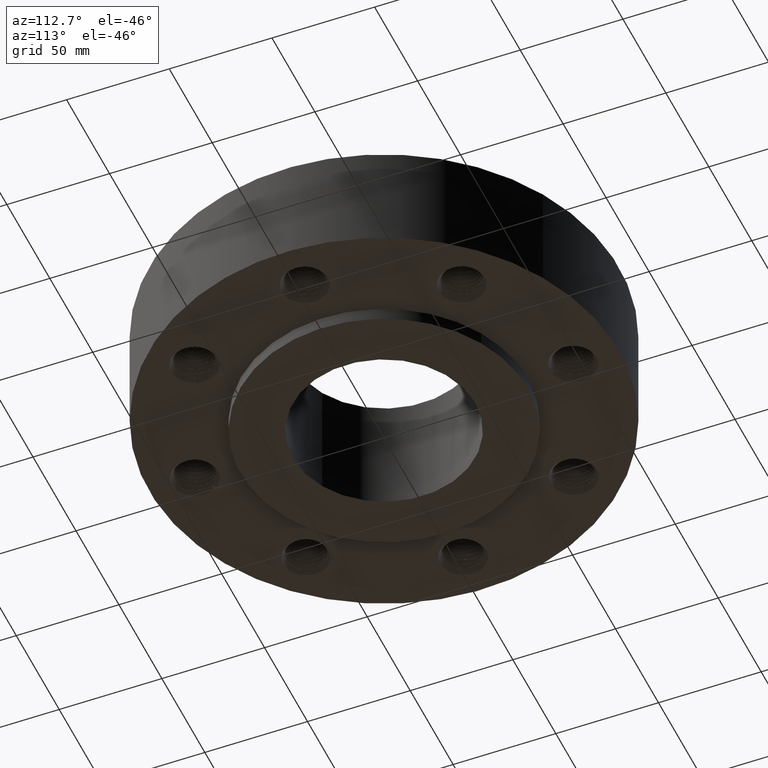
[diagram: clean part render]
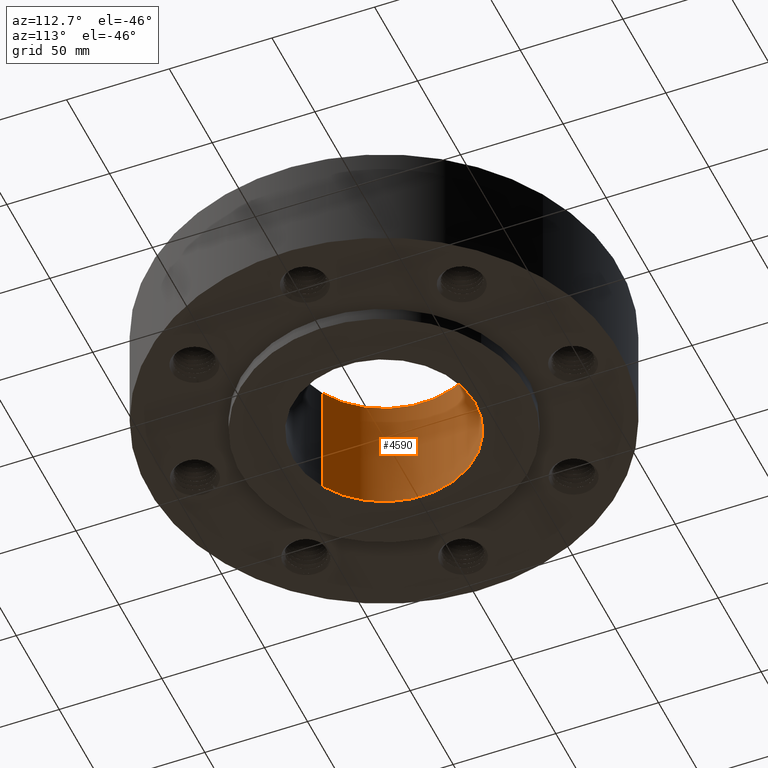
[diagram: same view with one face highlighted and labeled with its STEP entity id]
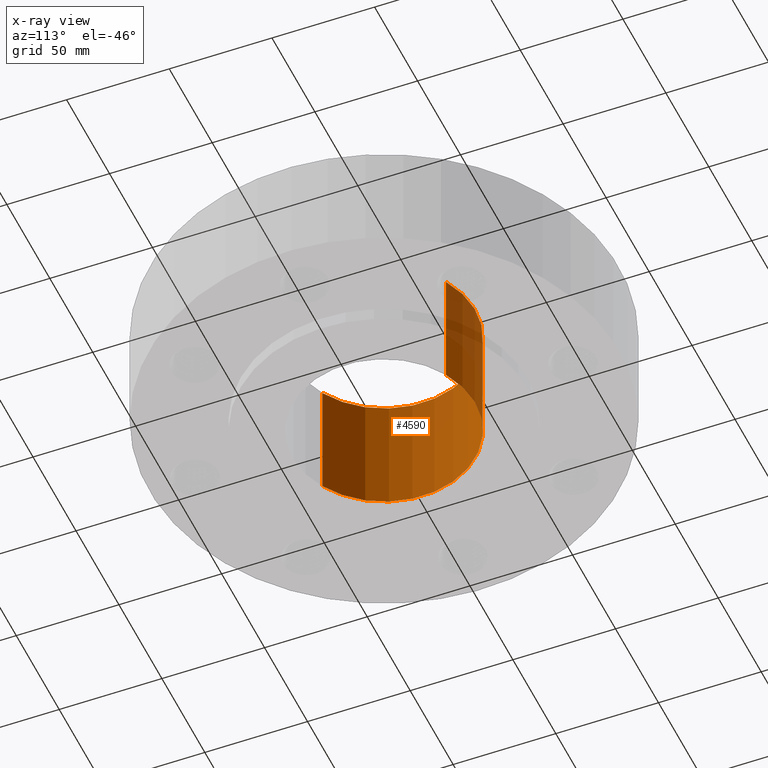
[diagram: x-ray of the same camera — body ghosted, the highlighted face saturated]
A machine part, auxiliary view. The second image highlights one B-rep face of the part: STEP entity #4590.
The next image is the same camera in x-ray: the body ghosted, the highlighted face saturated — about 11% of this face is hidden behind the body in this view.
In plain terms, the highlighted cylindrical surface (partial cylindrical patch) has radius 44.45 mm, axis along (0, 0, -1).
Its self-contained STEP definition (entity closure, byte-faithful):
#4540=AXIS2_PLACEMENT_3D('Circle Axis2P3D',#4538,#4539,$) ;
#4551=AXIS2_PLACEMENT_3D('Cylinder Axis2P3D',#4548,#4549,#4550) ;
#4581=AXIS2_PLACEMENT_3D('Circle Axis2P3D',#4579,#4580,$) ;
#4533=CARTESIAN_POINT('Vertex',(0.838994692561,1.53576948331,-0.250000000001)) ;
#4535=CARTESIAN_POINT('Vertex',(-0.838994692561,-1.53576948331,-0.250000000001)) ;
#4538=CARTESIAN_POINT('Axis2P3D Location',(0.,0.,-0.250000000001)) ;
#4548=CARTESIAN_POINT('Axis2P3D Location',(0.,0.,0.935000000004)) ;
#4557=CARTESIAN_POINT('Vertex',(0.838994692561,1.53576948331,2.12000000001)) ;
#4559=CARTESIAN_POINT('Vertex',(-0.838994692561,-1.53576948331,2.12000000001)) ;
#4562=CARTESIAN_POINT('Line Origine',(0.838994692561,1.53576948331,0.935000000004)) ;
#4567=CARTESIAN_POINT('Line Origine',(-0.838994692561,-1.53576948331,0.935000000004)) ;
#4579=CARTESIAN_POINT('Axis2P3D Location',(0.,0.,2.12000000001)) ;
#4539=DIRECTION('Axis2P3D Direction',(0.,0.,-0.0393700787402)) ;
#4549=DIRECTION('Axis2P3D Direction',(0.,0.,-0.0393700787402)) ;
#4550=DIRECTION('Axis2P3D XDirection',(-0.0188750212049,-0.0345504945626,0.)) ;
#4563=DIRECTION('Vector Direction',(0.,0.,-0.0393700787402)) ;
#4568=DIRECTION('Vector Direction',(0.,0.,-0.0393700787402)) ;
#4580=DIRECTION('Axis2P3D Direction',(0.,0.,-0.0393700787402)) ;
#4564=VECTOR('Line Direction',#4563,0.0393700787402) ;
#4569=VECTOR('Line Direction',#4568,0.0393700787402) ;
#4585=ORIENTED_EDGE('',*,*,#4583,.F.) ;
#4586=ORIENTED_EDGE('',*,*,#4571,.T.) ;
#4587=ORIENTED_EDGE('',*,*,#4542,.T.) ;
#4588=ORIENTED_EDGE('',*,*,#4566,.F.) ;
#4590=ADVANCED_FACE('PartBody',(#4589),#4552,.F.) ;
#4541=CIRCLE('generated circle',#4540,1.75000000001) ;
#4582=CIRCLE('generated circle',#4581,1.75000000001) ;
#4552=CYLINDRICAL_SURFACE('generated cylinder',#4551,1.75000000001) ;
#4542=EDGE_CURVE('',#4536,#4534,#4541,.T.) ;
#4566=EDGE_CURVE('',#4558,#4534,#4565,.T.) ;
#4571=EDGE_CURVE('',#4560,#4536,#4570,.T.) ;
#4583=EDGE_CURVE('',#4560,#4558,#4582,.T.) ;
#4584=EDGE_LOOP('',(#4585,#4586,#4587,#4588)) ;
#4589=FACE_OUTER_BOUND('',#4584,.T.) ;
#4565=LINE('Line',#4562,#4564) ;
#4570=LINE('Line',#4567,#4569) ;
#4534=VERTEX_POINT('',#4533) ;
#4536=VERTEX_POINT('',#4535) ;
#4558=VERTEX_POINT('',#4557) ;
#4560=VERTEX_POINT('',#4559) ;